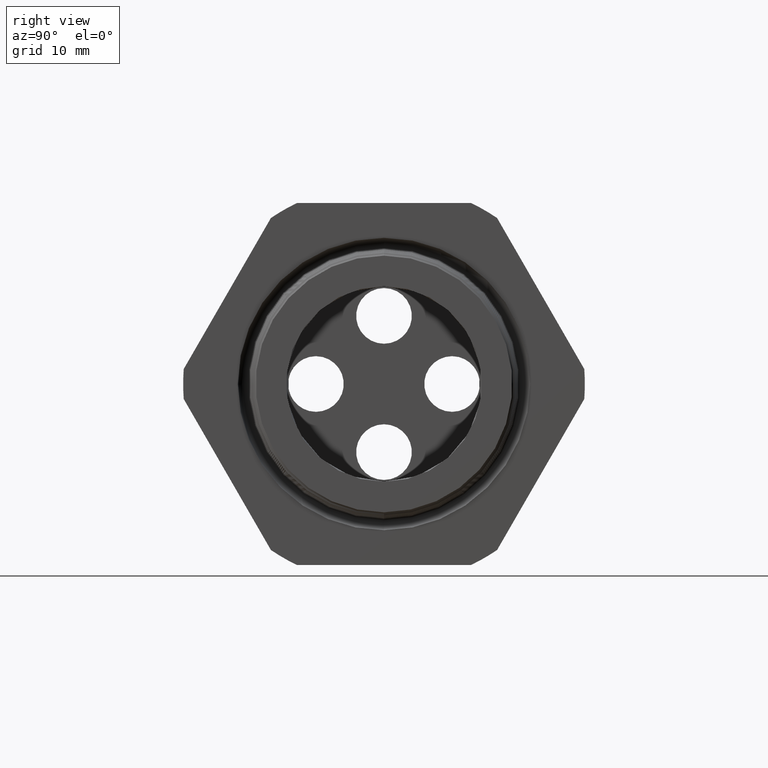
[diagram: clean part render]
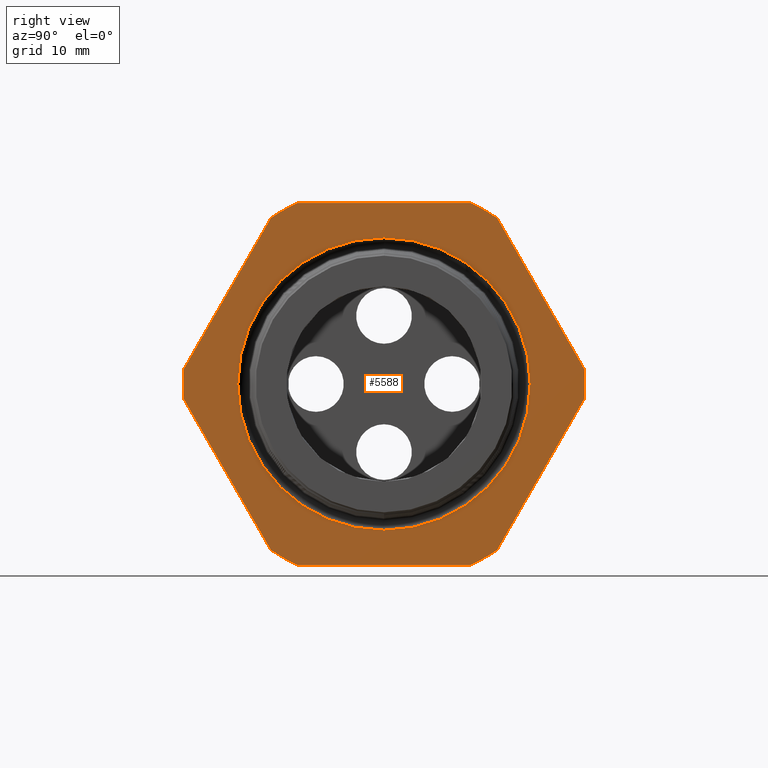
[diagram: same view with one face highlighted and labeled with its STEP entity id]
A machine part, right view. The second image highlights one B-rep face of the part: STEP entity #5588.
In plain terms, the highlighted planar face has unit normal (1, 0, 0).
Its self-contained STEP definition (entity closure, byte-faithful):
#119 = EDGE_CURVE ( 'NONE', #120, #5649, #1597, .T. ) ;
#120 = VERTEX_POINT ( 'NONE', #1592 ) ;
#121 = ORIENTED_EDGE ( 'NONE', *, *, #119, .T. ) ;
#169 = ORIENTED_EDGE ( 'NONE', *, *, #204, .T. ) ;
#173 = VERTEX_POINT ( 'NONE', #1672 ) ;
#185 = VERTEX_POINT ( 'NONE', #1719 ) ;
#186 = EDGE_CURVE ( 'NONE', #185, #120, #1718, .T. ) ;
#187 = ORIENTED_EDGE ( 'NONE', *, *, #186, .T. ) ;
#189 = ORIENTED_EDGE ( 'NONE', *, *, #193, .T. ) ;
#192 = ORIENTED_EDGE ( 'NONE', *, *, #5673, .T. ) ;
#193 = EDGE_CURVE ( 'NONE', #358, #185, #1707, .T. ) ;
#194 = VERTEX_POINT ( 'NONE', #1708 ) ;
#196 = VERTEX_POINT ( 'NONE', #1702 ) ;
#203 = ORIENTED_EDGE ( 'NONE', *, *, #206, .T. ) ;
#204 = EDGE_CURVE ( 'NONE', #173, #205, #1750, .T. ) ;
#205 = VERTEX_POINT ( 'NONE', #1746 ) ;
#206 = EDGE_CURVE ( 'NONE', #205, #194, #1745, .T. ) ;
#213 = EDGE_CURVE ( 'NONE', #214, #173, #1793, .T. ) ;
#214 = VERTEX_POINT ( 'NONE', #1788 ) ;
#220 = ORIENTED_EDGE ( 'NONE', *, *, #213, .T. ) ;
#227 = EDGE_CURVE ( 'NONE', #5627, #214, #1827, .T. ) ;
#228 = ORIENTED_EDGE ( 'NONE', *, *, #227, .T. ) ;
#229 = EDGE_CURVE ( 'NONE', #5631, #5627, #1823, .T. ) ;
#358 = VERTEX_POINT ( 'NONE', #2045 ) ;
#364 = VERTEX_POINT ( 'NONE', #2084 ) ;
#367 = EDGE_CURVE ( 'NONE', #364, #358, #2083, .T. ) ;
#368 = ORIENTED_EDGE ( 'NONE', *, *, #367, .T. ) ;
#643 = VERTEX_POINT ( 'NONE', #2583 ) ;
#644 = EDGE_CURVE ( 'NONE', #648, #643, #2581, .T. ) ;
#648 = VERTEX_POINT ( 'NONE', #2631 ) ;
#1592 = CARTESIAN_POINT ( 'NONE',  ( -0.3100000000000000000, 0.4063420493440890700, 0.5961949252843787800 ) ) ;
#1593 = DIRECTION ( 'NONE',  ( 0.0000000000000000000, 0.0000000000000000000, -1.000000000000000000 ) ) ;
#1594 = DIRECTION ( 'NONE',  ( 1.000000000000000000, 0.0000000000000000000, 0.0000000000000000000 ) ) ;
#1595 = CARTESIAN_POINT ( 'NONE',  ( -0.3100000000000000000, 0.0000000000000000000, 0.0000000000000000000 ) ) ;
#1596 = AXIS2_PLACEMENT_3D ( 'NONE', #1595, #1594, #1593 ) ;
#1597 = CIRCLE ( 'NONE', #1596, 0.7215000000000000300 ) ;
#1672 = CARTESIAN_POINT ( 'NONE',  ( -0.3100000000000000000, -0.7194909755756819800, -0.05380507471562082100 ) ) ;
#1702 = CARTESIAN_POINT ( 'NONE',  ( -0.3100000000000000000, 0.3131489262315934100, -0.6500000000000001300 ) ) ;
#1703 = DIRECTION ( 'NONE',  ( 0.0000000000000000000, 0.0000000000000000000, -1.000000000000000000 ) ) ;
#1704 = DIRECTION ( 'NONE',  ( 1.000000000000000000, 0.0000000000000000000, 0.0000000000000000000 ) ) ;
#1705 = CARTESIAN_POINT ( 'NONE',  ( -0.3100000000000000000, 0.0000000000000000000, 0.0000000000000000000 ) ) ;
#1706 = AXIS2_PLACEMENT_3D ( 'NONE', #1705, #1704, #1703 ) ;
#1707 = CIRCLE ( 'NONE', #1706, 0.7214999999999999200 ) ;
#1708 = CARTESIAN_POINT ( 'NONE',  ( -0.3100000000000000000, -0.3131489262315934100, -0.6500000000000001300 ) ) ;
#1715 = DIRECTION ( 'NONE',  ( 0.0000000000000000000, -0.4999999999999998300, 0.8660254037844386000 ) ) ;
#1716 = VECTOR ( 'NONE', #1715, 39.37007874015748900 ) ;
#1717 = CARTESIAN_POINT ( 'NONE',  ( -0.3100000000000000000, 0.8879165124598854500, -0.2379165124598849600 ) ) ;
#1718 = LINE ( 'NONE', #1717, #1716 ) ;
#1719 = CARTESIAN_POINT ( 'NONE',  ( -0.3100000000000000000, 0.7194909755756817600, 0.05380507471562173000 ) ) ;
#1741 = DIRECTION ( 'NONE',  ( 0.0000000000000000000, 0.0000000000000000000, -1.000000000000000000 ) ) ;
#1742 = DIRECTION ( 'NONE',  ( 1.000000000000000000, 0.0000000000000000000, 0.0000000000000000000 ) ) ;
#1743 = CARTESIAN_POINT ( 'NONE',  ( -0.3100000000000000000, 0.0000000000000000000, 0.0000000000000000000 ) ) ;
#1744 = AXIS2_PLACEMENT_3D ( 'NONE', #1743, #1742, #1741 ) ;
#1745 = CIRCLE ( 'NONE', #1744, 0.7215000000000000300 ) ;
#1746 = CARTESIAN_POINT ( 'NONE',  ( -0.3100000000000000000, -0.4063420493440881300, -0.5961949252843793400 ) ) ;
#1747 = DIRECTION ( 'NONE',  ( 0.0000000000000000000, 0.5000000000000001100, -0.8660254037844386000 ) ) ;
#1748 = VECTOR ( 'NONE', #1747, 39.37007874015748100 ) ;
#1749 = CARTESIAN_POINT ( 'NONE',  ( -0.3100000000000000000, -0.2379165124598852700, -0.8879165124598854500 ) ) ;
#1750 = LINE ( 'NONE', #1749, #1748 ) ;
#1788 = CARTESIAN_POINT ( 'NONE',  ( -0.3100000000000000000, -0.7194909755756819800, 0.05380507471562025900 ) ) ;
#1789 = DIRECTION ( 'NONE',  ( 0.0000000000000000000, 0.0000000000000000000, -1.000000000000000000 ) ) ;
#1790 = DIRECTION ( 'NONE',  ( 1.000000000000000000, 0.0000000000000000000, 0.0000000000000000000 ) ) ;
#1791 = CARTESIAN_POINT ( 'NONE',  ( -0.3100000000000000000, 0.0000000000000000000, 0.0000000000000000000 ) ) ;
#1792 = AXIS2_PLACEMENT_3D ( 'NONE', #1791, #1790, #1789 ) ;
#1793 = CIRCLE ( 'NONE', #1792, 0.7215000000000000300 ) ;
#1819 = DIRECTION ( 'NONE',  ( 0.0000000000000000000, 0.0000000000000000000, -1.000000000000000000 ) ) ;
#1820 = DIRECTION ( 'NONE',  ( 1.000000000000000000, 0.0000000000000000000, 0.0000000000000000000 ) ) ;
#1821 = CARTESIAN_POINT ( 'NONE',  ( -0.3100000000000000000, 0.0000000000000000000, 0.0000000000000000000 ) ) ;
#1822 = AXIS2_PLACEMENT_3D ( 'NONE', #1821, #1820, #1819 ) ;
#1823 = CIRCLE ( 'NONE', #1822, 0.7215000000000000300 ) ;
#1824 = DIRECTION ( 'NONE',  ( 0.0000000000000000000, -0.4999999999999995600, -0.8660254037844388200 ) ) ;
#1825 = VECTOR ( 'NONE', #1824, 39.37007874015748900 ) ;
#1826 = CARTESIAN_POINT ( 'NONE',  ( -0.3100000000000000000, -0.2379165124598858200, 0.8879165124598845700 ) ) ;
#1827 = LINE ( 'NONE', #1826, #1825 ) ;
#2045 = CARTESIAN_POINT ( 'NONE',  ( -0.3100000000000000000, 0.7194909755756817600, -0.05380507471562091100 ) ) ;
#2080 = DIRECTION ( 'NONE',  ( 0.0000000000000000000, 0.4999999999999997200, 0.8660254037844388200 ) ) ;
#2081 = VECTOR ( 'NONE', #2080, 39.37007874015748100 ) ;
#2082 = CARTESIAN_POINT ( 'NONE',  ( -0.3100000000000000000, 0.8879165124598849000, 0.2379165124598850700 ) ) ;
#2083 = LINE ( 'NONE', #2082, #2081 ) ;
#2084 = CARTESIAN_POINT ( 'NONE',  ( -0.3100000000000000000, 0.4063420493440886800, -0.5961949252843790100 ) ) ;
#2577 = DIRECTION ( 'NONE',  ( 0.0000000000000000000, 0.0000000000000000000, -1.000000000000000000 ) ) ;
#2578 = DIRECTION ( 'NONE',  ( 1.000000000000000000, 0.0000000000000000000, 0.0000000000000000000 ) ) ;
#2579 = CARTESIAN_POINT ( 'NONE',  ( -0.3100000000000000000, 0.0000000000000000000, 0.0000000000000000000 ) ) ;
#2580 = AXIS2_PLACEMENT_3D ( 'NONE', #2579, #2578, #2577 ) ;
#2581 = CIRCLE ( 'NONE', #2580, 0.5251854788396026500 ) ;
#2583 = CARTESIAN_POINT ( 'NONE',  ( -0.3100000000000000000, 0.0000000000000000000, -0.5251854788396026500 ) ) ;
#2631 = CARTESIAN_POINT ( 'NONE',  ( -0.3100000000000000000, 6.431667156195893800E-017, 0.5251854788396026500 ) ) ;
#3868 = CARTESIAN_POINT ( 'NONE',  ( -0.3100000000000000000, 0.0000000000000000000, 0.0000000000000000000 ) ) ;
#3924 = DIRECTION ( 'NONE',  ( 0.0000000000000000000, 0.0000000000000000000, -1.000000000000000000 ) ) ;
#3925 = DIRECTION ( 'NONE',  ( 1.000000000000000000, 0.0000000000000000000, 0.0000000000000000000 ) ) ;
#3926 = AXIS2_PLACEMENT_3D ( 'NONE', #3868, #3925, #3924 ) ;
#3927 = CIRCLE ( 'NONE', #3926, 0.5251854788396026500 ) ;
#3954 = DIRECTION ( 'NONE',  ( 0.0000000000000000000, 0.0000000000000000000, -1.000000000000000000 ) ) ;
#3955 = DIRECTION ( 'NONE',  ( 1.000000000000000000, 0.0000000000000000000, 0.0000000000000000000 ) ) ;
#3956 = CARTESIAN_POINT ( 'NONE',  ( -0.3100000000000000000, 1.300000000000000000, 0.0000000000000000000 ) ) ;
#3957 = AXIS2_PLACEMENT_3D ( 'NONE', #3956, #3955, #3954 ) ;
#3958 = PLANE ( 'NONE',  #3957 ) ;
#3959 = FACE_OUTER_BOUND ( 'NONE', #5653, .T. ) ;
#3960 = FACE_BOUND ( 'NONE', #5572, .T. ) ;
#3994 = CARTESIAN_POINT ( 'NONE',  ( -0.3100000000000000000, 1.300000000000000000, 0.6499999999999999100 ) ) ;
#3995 = LINE ( 'NONE', #3994, #4058 ) ;
#4010 = CARTESIAN_POINT ( 'NONE',  ( -0.3100000000000000000, -0.3131489262315937400, 0.6500000000000000200 ) ) ;
#4015 = CARTESIAN_POINT ( 'NONE',  ( -0.3100000000000000000, -0.4063420493440885700, 0.5961949252843791200 ) ) ;
#4050 = CARTESIAN_POINT ( 'NONE',  ( -0.3100000000000000000, 0.3131489262315937900, 0.6499999999999999100 ) ) ;
#4057 = DIRECTION ( 'NONE',  ( 0.0000000000000000000, -1.000000000000000000, 0.0000000000000000000 ) ) ;
#4058 = VECTOR ( 'NONE', #4057, 39.37007874015748100 ) ;
#4069 = DIRECTION ( 'NONE',  ( 0.0000000000000000000, 1.000000000000000000, 0.0000000000000000000 ) ) ;
#4070 = VECTOR ( 'NONE', #4069, 39.37007874015748100 ) ;
#4071 = CARTESIAN_POINT ( 'NONE',  ( -0.3100000000000000000, 1.300000000000000000, -0.6500000000000001300 ) ) ;
#4072 = LINE ( 'NONE', #4071, #4070 ) ;
#4073 = DIRECTION ( 'NONE',  ( 0.0000000000000000000, 0.0000000000000000000, -1.000000000000000000 ) ) ;
#4074 = DIRECTION ( 'NONE',  ( 1.000000000000000000, 0.0000000000000000000, 0.0000000000000000000 ) ) ;
#4075 = CARTESIAN_POINT ( 'NONE',  ( -0.3100000000000000000, 0.0000000000000000000, 0.0000000000000000000 ) ) ;
#4076 = AXIS2_PLACEMENT_3D ( 'NONE', #4075, #4074, #4073 ) ;
#4077 = CIRCLE ( 'NONE', #4076, 0.7215000000000000300 ) ;
#5568 = ORIENTED_EDGE ( 'NONE', *, *, #644, .F. ) ;
#5570 = EDGE_CURVE ( 'NONE', #643, #648, #3927, .T. ) ;
#5571 = ORIENTED_EDGE ( 'NONE', *, *, #5570, .F. ) ;
#5572 = EDGE_LOOP ( 'NONE', ( #5571, #5568 ) ) ;
#5588 = ADVANCED_FACE ( 'NONE', ( #3960, #3959 ), #3958, .T. ) ;
#5627 = VERTEX_POINT ( 'NONE', #4015 ) ;
#5630 = ORIENTED_EDGE ( 'NONE', *, *, #229, .T. ) ;
#5631 = VERTEX_POINT ( 'NONE', #4010 ) ;
#5647 = EDGE_CURVE ( 'NONE', #5649, #5631, #3995, .T. ) ;
#5649 = VERTEX_POINT ( 'NONE', #4050 ) ;
#5651 = ORIENTED_EDGE ( 'NONE', *, *, #5647, .T. ) ;
#5653 = EDGE_LOOP ( 'NONE', ( #368, #189, #187, #121, #5651, #5630, #228, #220, #169, #203, #192, #5672 ) ) ;
#5671 = EDGE_CURVE ( 'NONE', #196, #364, #4077, .T. ) ;
#5672 = ORIENTED_EDGE ( 'NONE', *, *, #5671, .T. ) ;
#5673 = EDGE_CURVE ( 'NONE', #194, #196, #4072, .T. ) ;